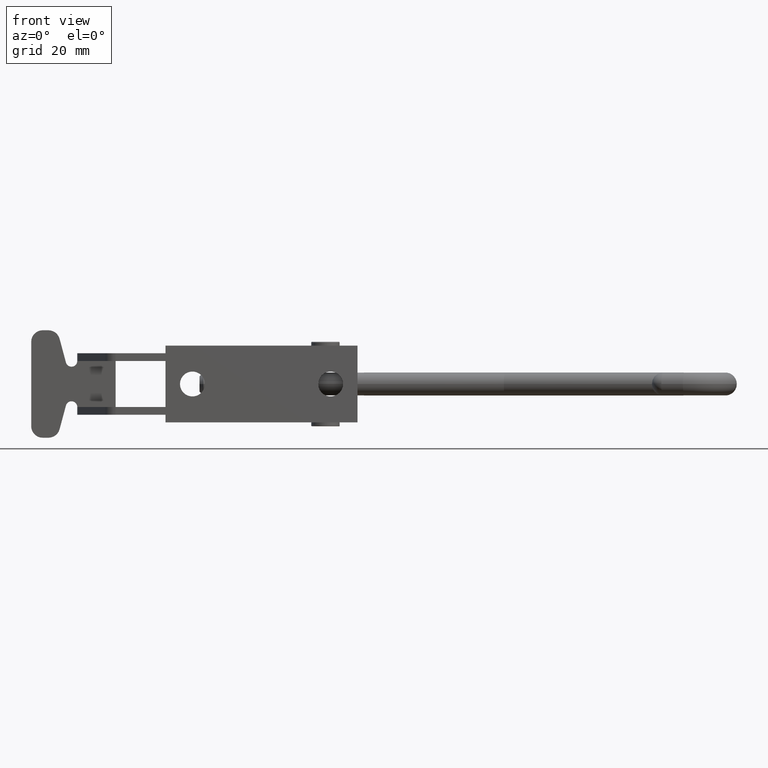
[diagram: clean part render]
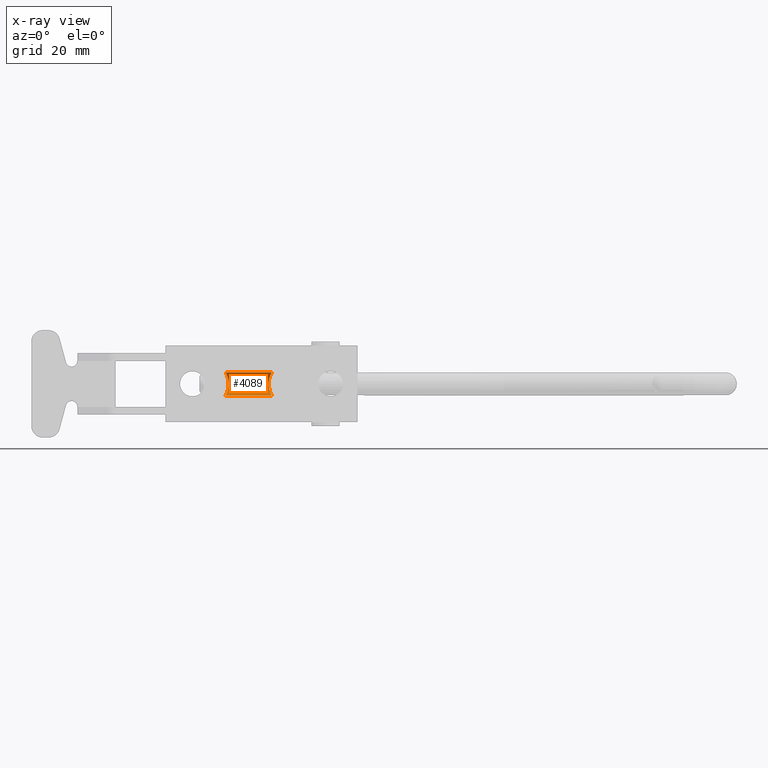
[diagram: x-ray — body ghosted, one internal face saturated and labeled with its STEP entity id]
A machine part, front view, then the same camera in x-ray: the body is ghosted and one INTERNAL B-rep face — a face not visible from any outside direction — is saturated and labeled: STEP entity #4089.
In plain terms, the highlighted cylindrical surface (edge-blend (fillet) strip) has radius 3 mm, axis along (-1, -0, 0).
Its self-contained STEP definition (entity closure, byte-faithful):
#12 = CARTESIAN_POINT ( 'NONE',  ( -22.68701910287825600, 12.98790139164073700, -2.255092164947388500 ) ) ;
#22 = CARTESIAN_POINT ( 'NONE',  ( -22.98655505524783000, 13.69087578175724600, 1.340969047884013100 ) ) ;
#96 = CARTESIAN_POINT ( 'NONE',  ( -34.34999999979142900, 10.99994999065439300, 2.999999999999754400 ) ) ;
#111 = CARTESIAN_POINT ( 'NONE',  ( -33.71315554802128400, 13.69142467121684000, 1.339384577624744800 ) ) ;
#124 = CARTESIAN_POINT ( 'NONE',  ( -34.01387364099149800, 12.98537236444214000, -2.257245885583797600 ) ) ;
#154 = EDGE_CURVE ( 'NONE', #182, #1436, #2218, .T. ) ;
#182 = VERTEX_POINT ( 'NONE', #4068 ) ;
#192 = DIRECTION ( 'NONE',  ( -0.9999999999652647900, -8.334890931688264100E-006, 6.038942527641245900E-016 ) ) ;
#319 = CARTESIAN_POINT ( 'NONE',  ( -18.35000000034716500, 11.00008334890931000, -3.074661791805408400E-013 ) ) ;
#349 = FACE_OUTER_BOUND ( 'NONE', #2229, .T. ) ;
#362 = CARTESIAN_POINT ( 'NONE',  ( -22.84237891487578100, 13.38333120843581100, -1.832406859702395700 ) ) ;
#375 = CARTESIAN_POINT ( 'NONE',  ( -22.84185707412872900, 13.38212226397514800, 1.833948270912011600 ) ) ;
#439 = CARTESIAN_POINT ( 'NONE',  ( -34.35000168254786200, 11.20184302903469500, 2.999999999999696700 ) ) ;
#453 = CARTESIAN_POINT ( 'NONE',  ( -33.60205353828086300, 13.90137202030666900, 0.7880859472499557300 ) ) ;
#471 = CARTESIAN_POINT ( 'NONE',  ( -34.15890793410729000, 12.51169437604504600, -2.598649266042097700 ) ) ;
#706 = CARTESIAN_POINT ( 'NONE',  ( -22.35000168296467400, 11.20194304772587700, -3.000000000000297100 ) ) ;
#719 = CARTESIAN_POINT ( 'NONE',  ( -22.98688931818567800, 13.69151407347597200, -1.339384577625347500 ) ) ;
#726 = CARTESIAN_POINT ( 'NONE',  ( -22.68615945551930200, 12.98546677970438500, 2.257245885583193200 ) ) ;
#737 = B_SPLINE_CURVE_WITH_KNOTS ( 'NONE', 3,
 ( #96, #439, #2844, #807, #3192, #1171, #3545, #1515, #3913, #1872, #4279, #2203, #111, #2536, #453, #2854, #825, #3212, #1184, #3556, #1534, #3926, #1882, #4301, #2219, #124, #2546, #471, #2864, #841, #3230, #1203, #3573, #1551 ),
 .UNSPECIFIED., .F., .F.,
 ( 4, 2, 2, 2, 2, 2, 2, 2, 2, 2, 2, 2, 2, 2, 2, 2, 4 ),
 ( 2.110382192020081100E-017, 0.0005964342858044720600, 0.001192868571608922900, 0.001789302857413373800, 0.002385737143217824900, 0.002982171429022276100, 0.003578605714826726800, 0.004175040000631177100, 0.004771474286435628200, 0.005367908572240079300, 0.005964342858044530500, 0.006560777143848980700, 0.007157211429653431900, 0.007753645715457883000, 0.008350080001262333300, 0.008946514287066784400, 0.009542948572871235600 ),
 .UNSPECIFIED. ) ;
#807 = CARTESIAN_POINT ( 'NONE',  ( -34.30121896686524300, 11.78807762757298300, 2.901395182369587400 ) ) ;
#825 = CARTESIAN_POINT ( 'NONE',  ( -33.54628957767192100, 13.99976243635494900, 0.2025540615598829000 ) ) ;
#841 = CARTESIAN_POINT ( 'NONE',  ( -34.27236376605060300, 11.97943892403774200, -2.842311461446213300 ) ) ;
#1079 = CARTESIAN_POINT ( 'NONE',  ( -23.09799482768717400, 13.90145957049036500, -0.7880859472505588000 ) ) ;
#1096 = CARTESIAN_POINT ( 'NONE',  ( -22.54111726631493100, 12.51179120906313400, 2.598649266041492800 ) ) ;
#1171 = CARTESIAN_POINT ( 'NONE',  ( -34.20073667899955400, 12.34274838169890900, 2.689888244236332300 ) ) ;
#1184 = CARTESIAN_POINT ( 'NONE',  ( -33.55790479410450900, 13.97989021638373900, -0.3990199680345530300 ) ) ;
#1203 = CARTESIAN_POINT ( 'NONE',  ( -34.34010760272945400, 11.39678011338340400, -2.980357866595499500 ) ) ;
#1400 = DIRECTION ( 'NONE',  ( 1.156482317317873500E-015, 0.0000000000000000000, 1.000000000000000000 ) ) ;
#1429 = CARTESIAN_POINT ( 'NONE',  ( -22.39879417104339200, 11.78817683298547800, -2.901395182370190900 ) ) ;
#1436 = VERTEX_POINT ( 'NONE', #4362 ) ;
#1442 = CARTESIAN_POINT ( 'NONE',  ( -23.15376042843512700, 13.99984905695191500, -0.2025540615604866400 ) ) ;
#1451 = CARTESIAN_POINT ( 'NONE',  ( -22.42765256180509000, 11.97953764841374600, 2.842311461445610600 ) ) ;
#1498 = ORIENTED_EDGE ( 'NONE', *, *, #3053, .T. ) ;
#1515 = CARTESIAN_POINT ( 'NONE',  ( -34.06413047837357800, 12.83769632655537600, 2.379239251597149400 ) ) ;
#1534 = CARTESIAN_POINT ( 'NONE',  ( -33.63439730783087400, 13.84297366171779600, -0.9777628536235875000 ) ) ;
#1551 = CARTESIAN_POINT ( 'NONE',  ( -34.34999999979140000, 10.99994999065440400, -3.000000000000292700 ) ) ;
#1593 = EDGE_CURVE ( 'NONE', #3277, #3052, #1772, .T. ) ;
#1744 = ORIENTED_EDGE ( 'NONE', *, *, #154, .F. ) ;
#1772 = LINE ( 'NONE', #1834, #4305 ) ;
#1776 = CARTESIAN_POINT ( 'NONE',  ( -22.49928570513559800, 12.34284591201652100, -2.689888244236934500 ) ) ;
#1790 = CARTESIAN_POINT ( 'NONE',  ( -23.14214488073859100, 13.97997703060658600, 0.3990199680339487900 ) ) ;
#1806 = CARTESIAN_POINT ( 'NONE',  ( -22.35989901234037800, 11.39687996711535000, 2.980357866594896000 ) ) ;
#1823 = DIRECTION ( 'NONE',  ( -0.9999999999652647900, -8.334890931688264100E-006, 6.038942527641245900E-016 ) ) ;
#1834 = CARTESIAN_POINT ( 'NONE',  ( -18.35000000034716200, 11.00008334890931000, 2.999999999999687400 ) ) ;
#1872 = CARTESIAN_POINT ( 'NONE',  ( -33.91017556637670800, 13.25954691367900300, 1.982736308920013800 ) ) ;
#1882 = CARTESIAN_POINT ( 'NONE',  ( -33.75945919811461200, 13.59844110117605500, -1.511794809577452700 ) ) ;
#1996 = CYLINDRICAL_SURFACE ( 'NONE', #3441, 2.999999999999994700 ) ;
#2107 = CARTESIAN_POINT ( 'NONE',  ( -22.63590015641687000, 12.83779157960865200, -2.379239251597752500 ) ) ;
#2126 = CARTESIAN_POINT ( 'NONE',  ( -23.06565008465375800, 13.84306175107319200, 0.9777628536229828700 ) ) ;
#2134 = CARTESIAN_POINT ( 'NONE',  ( -22.35000000020822200, 11.00005000934558400, 2.999999999999690000 ) ) ;
#2203 = CARTESIAN_POINT ( 'NONE',  ( -33.75884366150419400, 13.59972458383784800, 1.509622939372151600 ) ) ;
#2218 = LINE ( 'NONE', #4408, #4273 ) ;
#2219 = CARTESIAN_POINT ( 'NONE',  ( -33.91098785928748100, 13.25756109008510300, -1.985008441098043500 ) ) ;
#2229 = EDGE_LOOP ( 'NONE', ( #1744, #4006, #3887, #1498 ) ) ;
#2440 = CARTESIAN_POINT ( 'NONE',  ( -22.35000000020820100, 11.00005000934557500, -3.000000000000357500 ) ) ;
#2451 = CARTESIAN_POINT ( 'NONE',  ( -22.78986210054962000, 13.25963960027886700, -1.982736308920618500 ) ) ;
#2467 = CARTESIAN_POINT ( 'NONE',  ( -22.94058411808296300, 13.59853127531985400, 1.511794809576848500 ) ) ;
#2536 = CARTESIAN_POINT ( 'NONE',  ( -33.63487755226551500, 13.84205444188993900, 0.9800176523395132100 ) ) ;
#2546 = CARTESIAN_POINT ( 'NONE',  ( -34.06447974815364400, 12.83666885459588300, -2.380087568965362000 ) ) ;
#2769 = CARTESIAN_POINT ( 'NONE',  ( -22.94119967608866200, 13.59981474772060400, -1.509622939372756000 ) ) ;
#2783 = CARTESIAN_POINT ( 'NONE',  ( -22.78904977453571900, 13.25765379022599400, 1.985008441097439300 ) ) ;
#2844 = CARTESIAN_POINT ( 'NONE',  ( -34.33984784453254200, 11.39974534144439900, 2.979832592711382700 ) ) ;
#2854 = CARTESIAN_POINT ( 'NONE',  ( -33.55793388859456200, 13.97984069728822700, 0.3994794123732012800 ) ) ;
#2864 = CARTESIAN_POINT ( 'NONE',  ( -34.20141679522848200, 12.33963228979720800, -2.691354009131222500 ) ) ;
#2994 = CARTESIAN_POINT ( 'NONE',  ( -22.35000000020822200, 11.00005000934558400, 2.999999999999690000 ) ) ;
#3052 = VERTEX_POINT ( 'NONE', #4263 ) ;
#3053 = EDGE_CURVE ( 'NONE', #3052, #1436, #737, .T. ) ;
#3070 = DIRECTION ( 'NONE',  ( -0.9999999999652649000, -8.334890931688265800E-006, 6.038942527641246900E-016 ) ) ;
#3107 = CARTESIAN_POINT ( 'NONE',  ( -23.06516982489600700, 13.84214253925103200, -0.9800176523401160600 ) ) ;
#3119 = CARTESIAN_POINT ( 'NONE',  ( -22.63555086950910700, 12.83676411347156000, 2.380087568964758000 ) ) ;
#3192 = CARTESIAN_POINT ( 'NONE',  ( -34.27223025135496200, 11.98044977101420500, 2.842045811756125100 ) ) ;
#3212 = CARTESIAN_POINT ( 'NONE',  ( -33.54606689273542500, 14.00014814564328000, -0.1967584924232333400 ) ) ;
#3230 = CARTESIAN_POINT ( 'NONE',  ( -34.30116963624967500, 11.78892554226219300, -2.901297177998240600 ) ) ;
#3277 = VERTEX_POINT ( 'NONE', #2994 ) ;
#3441 = AXIS2_PLACEMENT_3D ( 'NONE', #319, #3070, #1400 ) ;
#3444 = CARTESIAN_POINT ( 'NONE',  ( -22.36015881996696600, 11.39984519084581600, -2.979832592711985800 ) ) ;
#3454 = CARTESIAN_POINT ( 'NONE',  ( -23.14211578542306900, 13.97992751199608800, -0.3994794123738044100 ) ) ;
#3465 = CARTESIAN_POINT ( 'NONE',  ( -22.49860553696218800, 12.33972983145264600, 2.691354009130619800 ) ) ;
#3545 = CARTESIAN_POINT ( 'NONE',  ( -34.15829425500054100, 12.51397911473065600, 2.597268354183364500 ) ) ;
#3556 = CARTESIAN_POINT ( 'NONE',  ( -33.60193998854639800, 13.90157619284131700, -0.7872883223721050000 ) ) ;
#3573 = CARTESIAN_POINT ( 'NONE',  ( -34.35000166005158200, 11.19914397997796500, -3.000000000000294900 ) ) ;
#3593 = B_SPLINE_CURVE_WITH_KNOTS ( 'NONE', 3,
 ( #2440, #706, #3444, #1429, #3815, #1776, #4181, #2107, #12, #2451, #362, #2769, #719, #3107, #1079, #3454, #1442, #3830, #1790, #4195, #2126, #22, #2467, #375, #2783, #726, #3119, #1096, #3465, #1451, #3845, #1806, #4211, #2134 ),
 .UNSPECIFIED., .F., .F.,
 ( 4, 2, 2, 2, 2, 2, 2, 2, 2, 2, 2, 2, 2, 2, 2, 2, 4 ),
 ( 1.932193069600340100E-017, 0.0005964342858044699000, 0.001192868571608920500, 0.001789302857413371000, 0.002385737143217821900, 0.002982171429022272600, 0.003578605714826722900, 0.004175040000631173600, 0.004771474286435623900, 0.005367908572240074100, 0.005964342858044525300, 0.006560777143848975500, 0.007157211429653425800, 0.007753645715457877000, 0.008350080001262328100, 0.008946514287066777500, 0.009542948572871228600 ),
 .UNSPECIFIED. ) ;
#3815 = CARTESIAN_POINT ( 'NONE',  ( -22.42778609335130500, 11.98054849316441700, -2.842045811756728200 ) ) ;
#3830 = CARTESIAN_POINT ( 'NONE',  ( -23.15398311980128200, 14.00023476252808200, 0.1967584924226293600 ) ) ;
#3845 = CARTESIAN_POINT ( 'NONE',  ( -22.39884351579350500, 11.78902474685224500, 2.901297177997637100 ) ) ;
#3887 = ORIENTED_EDGE ( 'NONE', *, *, #1593, .T. ) ;
#3913 = CARTESIAN_POINT ( 'NONE',  ( -34.01301403421712200, 12.98780699070828800, 2.255092164946785000 ) ) ;
#3926 = CARTESIAN_POINT ( 'NONE',  ( -33.71348980031890400, 13.69078637392610900, -1.340969047884617900 ) ) ;
#4006 = ORIENTED_EDGE ( 'NONE', *, *, #4138, .T. ) ;
#4068 = CARTESIAN_POINT ( 'NONE',  ( -22.35000000020820100, 11.00005000934557500, -3.000000000000357500 ) ) ;
#4089 = ADVANCED_FACE ( 'NONE', ( #349 ), #1996, .F. ) ;
#4138 = EDGE_CURVE ( 'NONE', #182, #3277, #3593, .T. ) ;
#4181 = CARTESIAN_POINT ( 'NONE',  ( -22.54173098350768700, 12.51407593751852700, -2.597268354183968500 ) ) ;
#4195 = CARTESIAN_POINT ( 'NONE',  ( -23.09810838082513100, 13.90166374113213600, 0.7872883223715005900 ) ) ;
#4211 = CARTESIAN_POINT ( 'NONE',  ( -22.35000166046840400, 11.19924399866914500, 2.999999999999691800 ) ) ;
#4263 = CARTESIAN_POINT ( 'NONE',  ( -34.34999999979142900, 10.99994999065439300, 2.999999999999754400 ) ) ;
#4273 = VECTOR ( 'NONE', #192, 1000.000000000000100 ) ;
#4279 = CARTESIAN_POINT ( 'NONE',  ( -33.85766081396996400, 13.38323939726259800, 1.832406859701792000 ) ) ;
#4301 = CARTESIAN_POINT ( 'NONE',  ( -33.85818263456410900, 13.38203044410313300, -1.833948270912615100 ) ) ;
#4305 = VECTOR ( 'NONE', #1823, 1000.000000000000100 ) ;
#4362 = CARTESIAN_POINT ( 'NONE',  ( -34.34999999979140000, 10.99994999065440400, -3.000000000000292700 ) ) ;
#4408 = CARTESIAN_POINT ( 'NONE',  ( -18.35000000034716900, 11.00008334890931000, -3.000000000000302400 ) ) ;